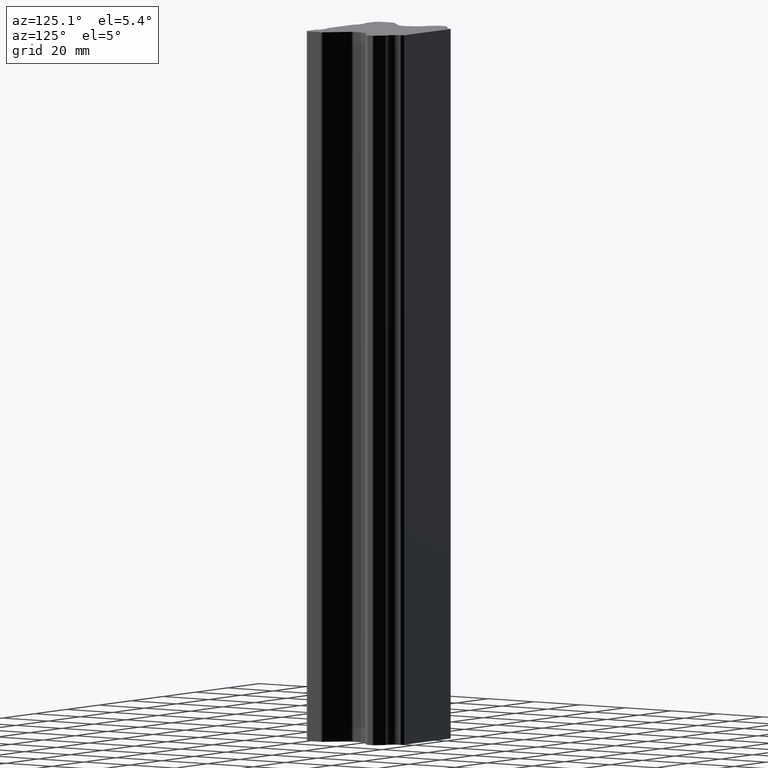
[diagram: clean part render]
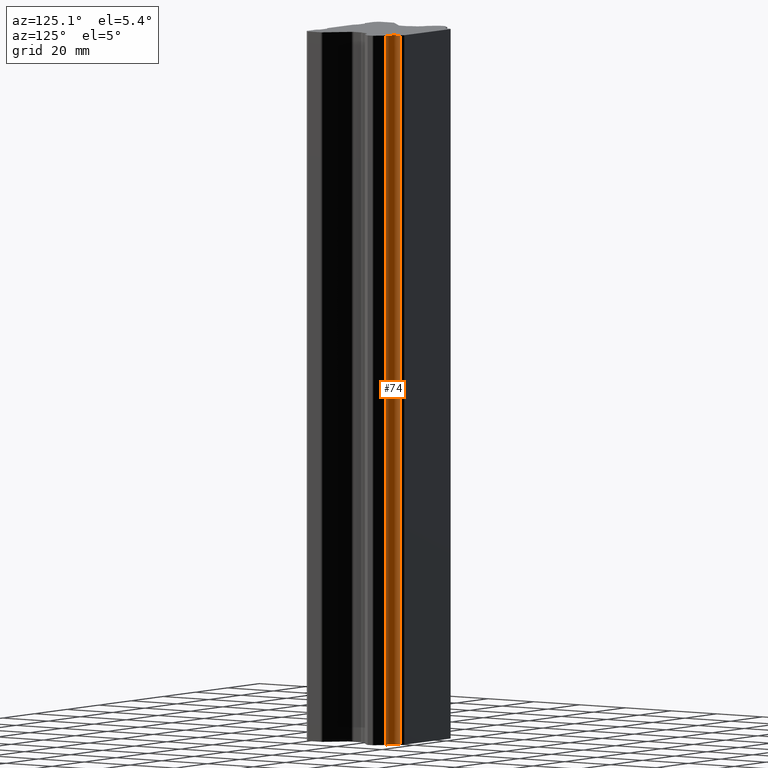
[diagram: same view with one face highlighted and labeled with its STEP entity id]
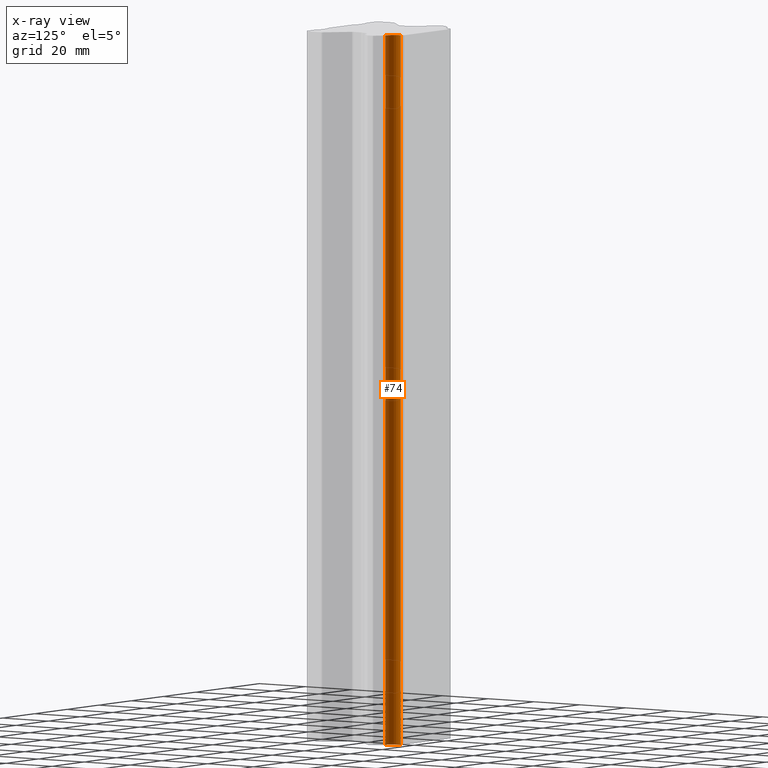
[diagram: x-ray of the same camera — body ghosted, the highlighted face saturated]
A machine part, auxiliary view. The second image highlights one B-rep face of the part: STEP entity #74.
The next image is the same camera in x-ray: the body ghosted, the highlighted face saturated — about 0% of this face is hidden behind the body in this view.
In plain terms, the highlighted cylindrical surface (edge-blend (fillet) strip) has radius 4 mm, axis along (0, 0, 1).
Its self-contained STEP definition (entity closure, byte-faithful):
#74 = ADVANCED_FACE ( 'NONE', ( #927 ), #926, .F. ) ;
#75 = EDGE_LOOP ( 'NONE', ( #122, #340, #438, #441 ) ) ;
#122 = ORIENTED_EDGE ( 'NONE', *, *, #123, .F. ) ;
#123 = EDGE_CURVE ( 'NONE', #124, #125, #785, .T. ) ;
#124 = VERTEX_POINT ( 'NONE', #845 ) ;
#125 = VERTEX_POINT ( 'NONE', #844 ) ;
#340 = ORIENTED_EDGE ( 'NONE', *, *, #440, .F. ) ;
#341 = VERTEX_POINT ( 'NONE', #1296 ) ;
#342 = VERTEX_POINT ( 'NONE', #1295 ) ;
#402 = EDGE_CURVE ( 'NONE', #125, #342, #1562, .T. ) ;
#438 = ORIENTED_EDGE ( 'NONE', *, *, #439, .T. ) ;
#439 = EDGE_CURVE ( 'NONE', #341, #342, #1584, .T. ) ;
#440 = EDGE_CURVE ( 'NONE', #341, #124, #1585, .T. ) ;
#441 = ORIENTED_EDGE ( 'NONE', *, *, #402, .F. ) ;
#782 = DIRECTION ( 'NONE',  ( 0.0000000000000000000, 0.0000000000000000000, -1.000000000000000000 ) ) ;
#783 = CARTESIAN_POINT ( 'NONE',  ( 19.33229302319000100, -0.8345829768097000600, 127.5000000000000000 ) ) ;
#784 = AXIS2_PLACEMENT_3D ( 'NONE', #783, #782, #846 ) ;
#785 = CIRCLE ( 'NONE', #784, 4.000000000000000000 ) ;
#844 = CARTESIAN_POINT ( 'NONE',  ( 15.33350785821720800, -0.9331588581790084500, 127.5000000000000000 ) ) ;
#845 = CARTESIAN_POINT ( 'NONE',  ( 19.23371714181971000, -4.833368141783494400, 127.5000000000000000 ) ) ;
#846 = DIRECTION ( 'NONE',  ( 1.000000000000000000, 0.0000000000000000000, 0.0000000000000000000 ) ) ;
#850 = DIRECTION ( 'NONE',  ( 1.000000000000000000, 0.0000000000000000000, 0.0000000000000000000 ) ) ;
#851 = DIRECTION ( 'NONE',  ( 0.0000000000000000000, 0.0000000000000000000, 1.000000000000000000 ) ) ;
#852 = CARTESIAN_POINT ( 'NONE',  ( 19.33229302319000100, -0.8345829768097000600, -127.5000000000000000 ) ) ;
#925 = AXIS2_PLACEMENT_3D ( 'NONE', #852, #851, #850 ) ;
#926 = CYLINDRICAL_SURFACE ( 'NONE', #925, 4.000000000000000000 ) ;
#927 = FACE_OUTER_BOUND ( 'NONE', #75, .T. ) ;
#1295 = CARTESIAN_POINT ( 'NONE',  ( 15.33350785821715900, -0.9331588581769063600, -127.5000000000000000 ) ) ;
#1296 = CARTESIAN_POINT ( 'NONE',  ( 19.23371714181970700, -4.833368141783494400, -127.5000000000000000 ) ) ;
#1548 = DIRECTION ( 'NONE',  ( 0.0000000000000000000, 0.0000000000000000000, -1.000000000000000000 ) ) ;
#1549 = VECTOR ( 'NONE', #1548, 1000.000000000000000 ) ;
#1561 = CARTESIAN_POINT ( 'NONE',  ( 15.33350785821795100, -0.9331588581797497500, -127.5000000000000000 ) ) ;
#1562 = LINE ( 'NONE', #1561, #1549 ) ;
#1582 = CARTESIAN_POINT ( 'NONE',  ( 19.33229302319000100, -0.8345829768097000600, -127.5000000000000000 ) ) ;
#1583 = AXIS2_PLACEMENT_3D ( 'NONE', #1582, #1610, #1609 ) ;
#1584 = CIRCLE ( 'NONE', #1583, 4.000000000000000000 ) ;
#1585 = LINE ( 'NONE', #1608, #1607 ) ;
#1606 = DIRECTION ( 'NONE',  ( 0.0000000000000000000, 0.0000000000000000000, 1.000000000000000000 ) ) ;
#1607 = VECTOR ( 'NONE', #1606, 1000.000000000000000 ) ;
#1608 = CARTESIAN_POINT ( 'NONE',  ( 19.23371714181921300, -4.833368141783785700, -127.5000000000000000 ) ) ;
#1609 = DIRECTION ( 'NONE',  ( 1.000000000000000000, 0.0000000000000000000, 0.0000000000000000000 ) ) ;
#1610 = DIRECTION ( 'NONE',  ( 0.0000000000000000000, 0.0000000000000000000, -1.000000000000000000 ) ) ;